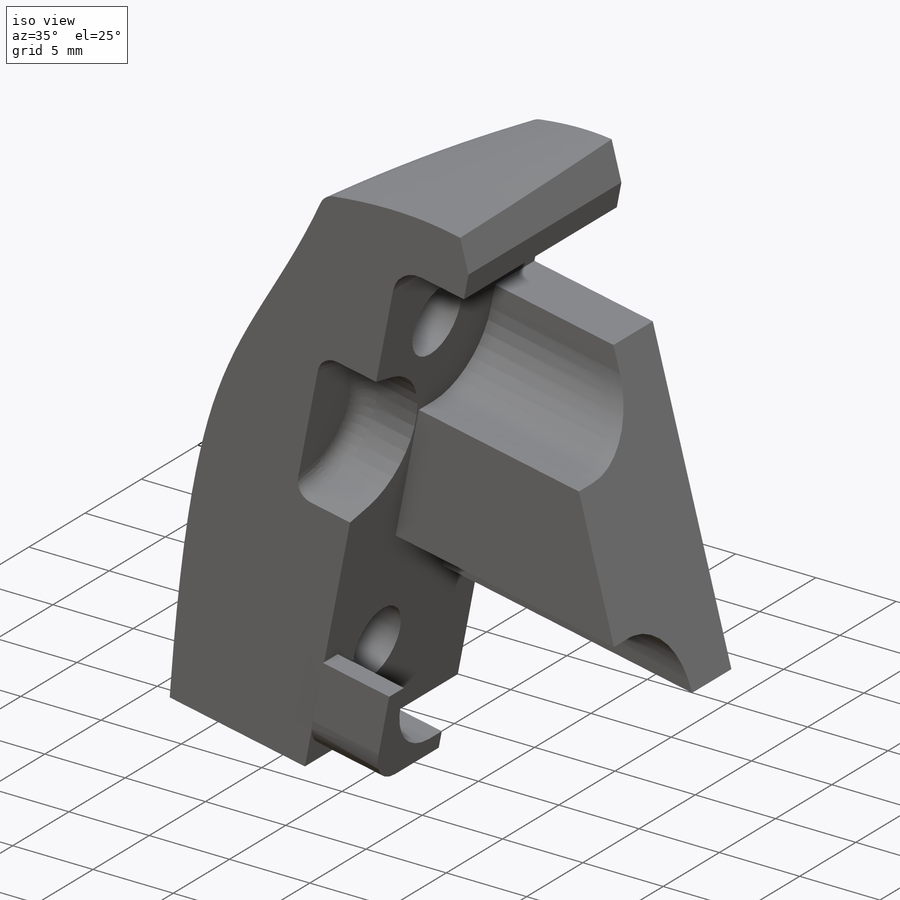
[diagram: iso view]
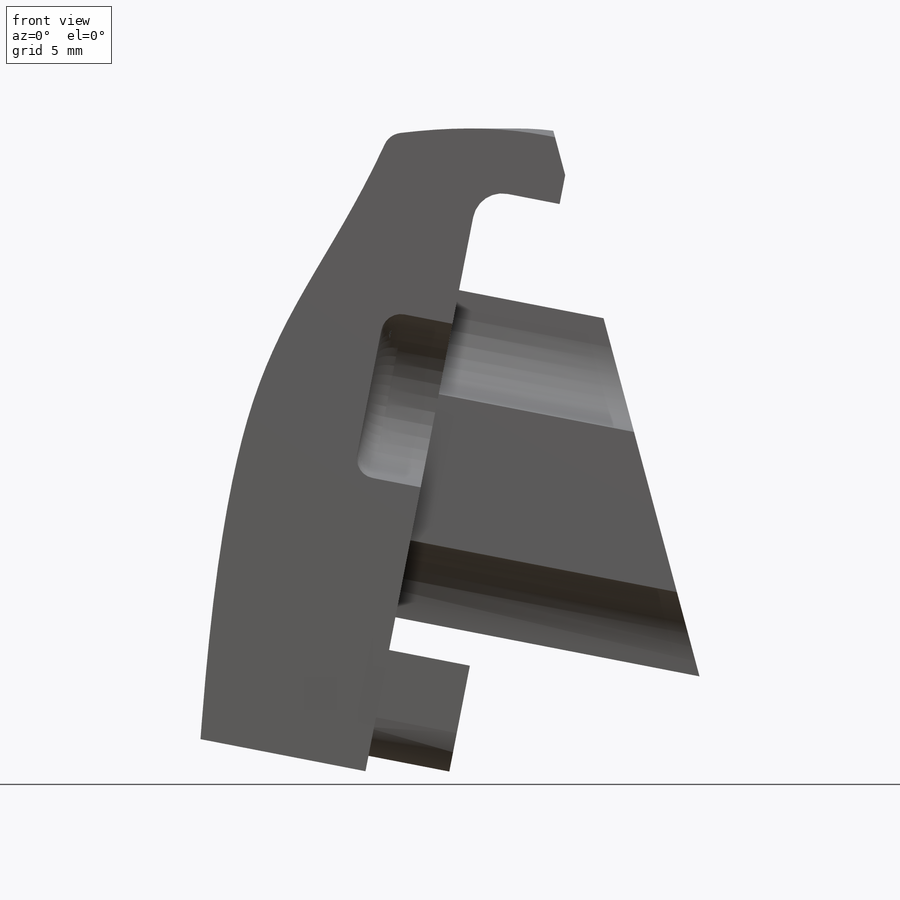
[diagram: front view]
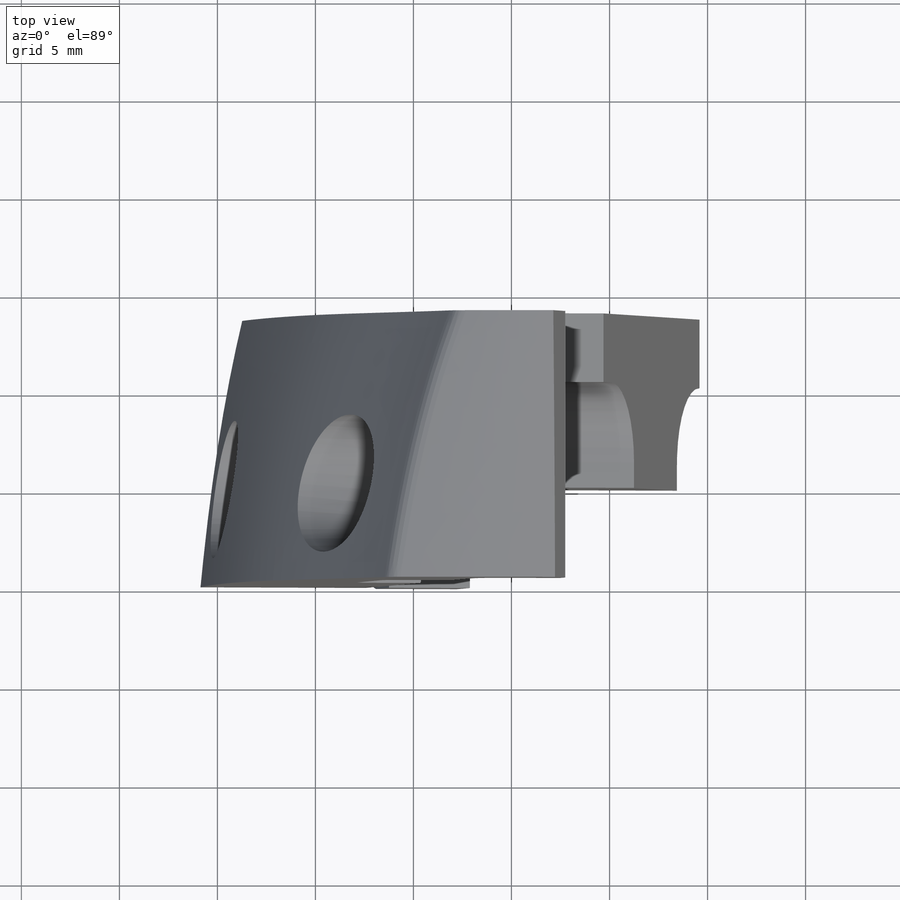
[diagram: top view]
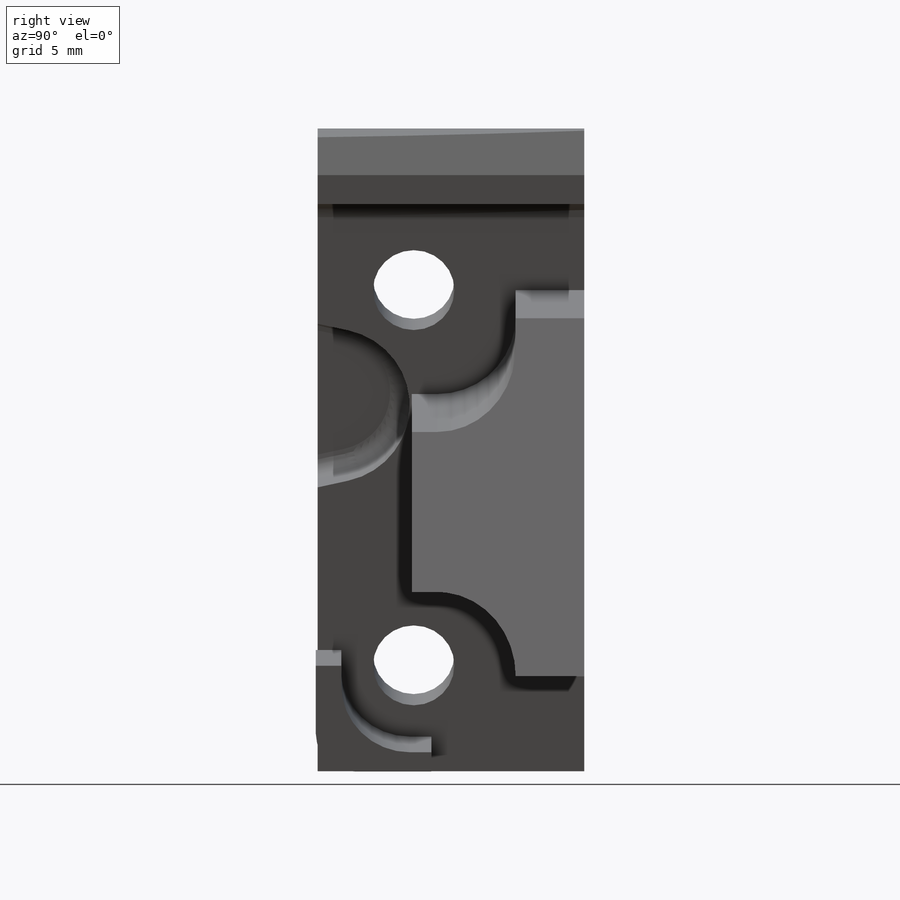
[diagram: right view]
SOLIDWORKS PART (.sldprt)
format: sldprt  version: not decoded by parser v0  size: 1,242,624 bytes
history: native  units: mm
features: sketch x26, plane x9, cut_extrude x5, fillet x5, extrude x4, delete_body x2, cut_revolve x2, material x1, surface_op x1, mirror x1, move_body x1 + 2 further entries (+9 scaffold rows collapsed; 1 parser-record rows omitted)
feature tree (69):
  scaffold x9  (default folders/planes/origin — collapsed)
  material  "Material <nicht festgelegt>"
  plane  "Vorne"
  plane  "Oben"
  plane  "Rechts"
  sketch  "Skizze1"  dims[D1=33.0mm D2=15.0mm]
  extrude  "Aufsatz-Linear austragen1"  Depth=8mm
  sketch  "Skizze2"  dims[D1=13.0mm]
  plane  "Ebene1"  Offset=14mm
  sketch  "Skizze3"  dims[c1.D1=12.5mm c1.D2=~7.550646mm c1.D3=8.0mm c2.D2=8.0mm c2.D3=1.1mm c2.D4=6.0mm c2.D5=20.0mm]
  plane  "Ebene2"  Offset=36mm
  sketch  "Skizze4"  dims[c1.D3=22.0mm c1.D4=12.2mm c1.D1=1.7mm c1.D2=27.8mm c2.D3=1.7mm c2.D5=1.7mm c3.D5=~10.511736deg c3.D6=4.2mm c3.D7=2.5mm c3.D8=3.1mm c3.D9=5.3mm c3.D10=12.0mm]
  plane  "Ebene3"  Offset=5.1mm
  sketch  "Skizze6"  dims[c1.D1=~36.674242mm c2.D1=~78.996459deg c2.D2=~6.871308mm c3.D2=90.0deg c3.D3=36.0mm c3.D4=4.0mm c3.D5=5.0mm c3.D6=1.0mm c3.D7=26.0mm c3.D8=2.0mm c3.D9=5.0mm]
  sketch  "Skizze11"  dims[c1.D1=7.0mm c1.D2=3.5mm c1.D3=14.0mm c1.D4=5.5mm c2.D3=43.0mm c2.D4=42.0mm c2.D5=~58.694122mm c3.D4=42.0mm c3.D5=28.0mm c3.D6=8.0mm c3.D7=28.0mm c4.D6=30.0mm c4.D7=10.0mm c4.D8=8.0mm c4.D9=19.0mm c4.D10=20.1mm c4.D11=~33.729395mm]
  sketch  "Skizze10"  dims[D1=18.0mm D2=17.0mm D3=46.0mm D4=17.0mm]
  sketch  "Skizze12"  dims[c1.D1=~71.391078mm c2.D1=15.0deg c2.D2=11.5mm c2.D3=41.0mm c2.D4=3.0mm c2.D5=42.0mm c3.D2=20.0mm c3.D3=1.0mm c4.D2=20.0mm c4.D3=1.0mm]
  extrude  "Aufsatz-Linear austragen7"  Depth=46mm
  plane  "Ebene4"  Offset=28mm
  sketch  "Skizze14"  dims[D1=12.0mm D2=14.0mm D3=46.0mm]
  sketch  "Skizze15"  dims[c1.D3=~21.268999mm c1.D4=~9.231116mm c1.D1=6.0mm c1.D2=42.0mm c2.D3=10.0mm c2.D4=15.0mm]
  sketch  "Skizze16"
  surface_op  "Oberfläche-Linear austragen1"
  sketch  "Skizze15<12>"
  sketch  "Skizze17"  dims[c1.D1=22.0mm c2.D1=40.0mm c2.D2=50.0mm]
  sketch  "Skizze18"  dims[D1=19.0mm D2=3.0deg]
  plane  "Ebene5"  Offset=45mm
  sketch  "Skizze19"  dims[c1.D1=4.5mm c1.D2=9.0mm c1.D3=22.0mm c1.D4=12.0mm c2.D1=25.0mm c2.D2=20.0mm]
  plane  "Ebene6"  Offset=8mm
  sketch  "Skizze20"  dims[D1=33.0mm]
  "Oberflächenausfüllung2"
  "Oberflächenausfüllung3"
  delete_body  "Körper-Löschen2"
  sketch  "Skizze21"  dims[D1=0.2mm D2=0.2mm D3=45.0mm D4=20.0mm]
  cut_extrude  "Schnitt-Linear austragen1"  [1 undecoded]
  sketch  "Skizze22"  dims[c1.D1=26.0mm c1.D2=~48.317781mm c2.D2=15.0deg c2.D3=52.2544mm c3.D3=11.0deg c3.D4=45.0mm c3.D5=18.0mm c3.D6=38.0mm c3.D7=1.4mm c4.D6=40.0mm c4.D8=10.0mm c4.D7=1.5mm c4.D9=4.2mm]
  cut_extrude  "Schnitt-Linear austragen2"  [1 undecoded]
  fillet  "Verrundung1"  Radius=1.5mm
  sketch  "Skizze23"  dims[D1=16.0mm D2=20.0mm D3=3.5mm D4=3.5mm D5=7.6mm D6=5.0mm D7=17.0mm]
  extrude  "Aufsatz-Linear austragen8"  [1 undecoded]
  fillet  "Verrundung2"  Radius=4mm
  sketch  "Skizze24"  dims[D7=3.5mm D8=2.0mm D1=8.8mm D2=6.0mm D3=1.0mm D4=4.6mm D5=4.5mm D6=0.1mm]
  extrude  "Aufsatz-Linear austragen9"  [1 undecoded]
  sketch  "Skizze28"  dims[c1.D4=4.0mm c1.D1=27.0mm c1.D2=8.5mm c1.D3=~1.804057mm c2.D3=25.0deg]
  cut_extrude  "Schnitt-Linear austragen3"  Depth=3.5mm
  fillet  "Verrundung5"  Radius=1mm
  sketch  "Skizze25"  dims[c1.D1=~30.856528mm c2.D1=79.0deg c2.D2=10.0mm c2.D3=5.0mm c2.D4=30.0mm c2.D5=2.5mm c2.D6=4.15mm c2.D7=7.0mm c2.D8=3.0mm c3.D4=33.0mm c3.D9=6.0mm c3.D10=19.5mm c3.D11=2.5mm c3.D12=4.15mm c3.D13=7.0mm c3.D14=10.0mm c3.D15=5.0mm c3.D16=3.0mm c3.D17=8.0mm]
  cut_revolve  "Schnitt-Rotation2"  Angle=360deg
  cut_extrude  "Schnitt-Rotation3"  [1 undecoded]
  sketch  "Skizze25<3>"  dims[c1.D1=360.0deg c2.D1=0.5mm]
  fillet  "Verrundung3"  Radius=1mm
  cut_revolve  "Fläche verschieben2"  [1 undecoded]
  fillet  "Verrundung4"  Radius=6mm
  sketch  "Skizze26"  dims[D1=16.0mm D2=27.5mm]
  sketch  "Skizze27"  dims[D1=5.0mm]
  sketch  "Skizze29"  dims[D1=8.0mm]
  cut_extrude  "Schnitt-Linear austragen4"  [1 undecoded]
  mirror  "Spiegeln1"
  delete_body  "Körper-Löschen3"
  parser-record x1  (decoder bookkeeping rows leaked as tree rows — omitted from the tree; the rows remain in map.json)
  move_body  "Körper-Verschieben/Kopieren1"
decode coverage: 33 of 47 modeling features carry decoded parameters; 2 rows unclassified (native names shown)
note: ~ marks probable driven/reference dimensions
note: 7 parameter values undecoded
summary: no parameter record found for 7 features
note: suppression state not decoded; provenance and decode notes live in map.json
